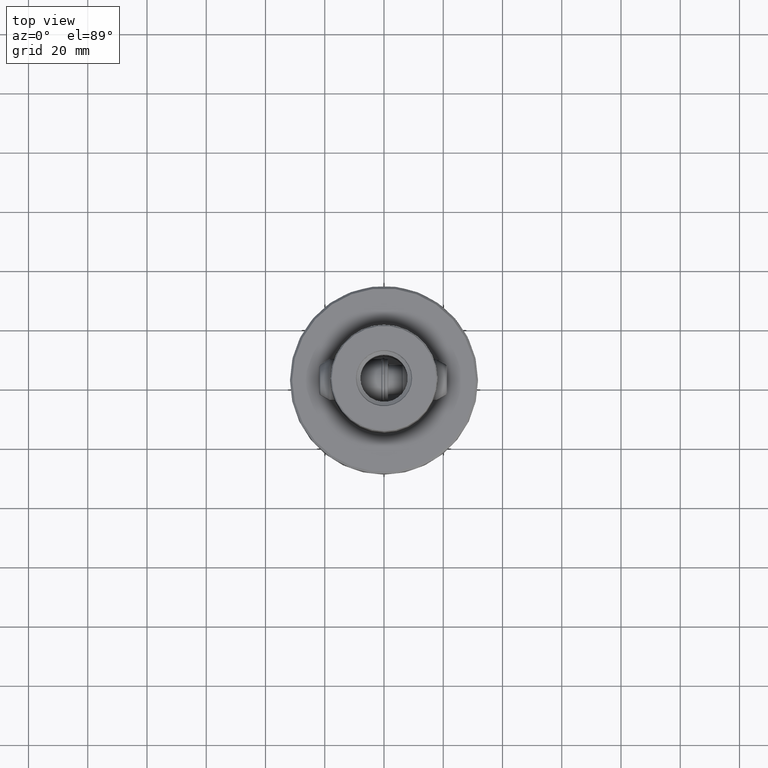
[diagram: clean part render]
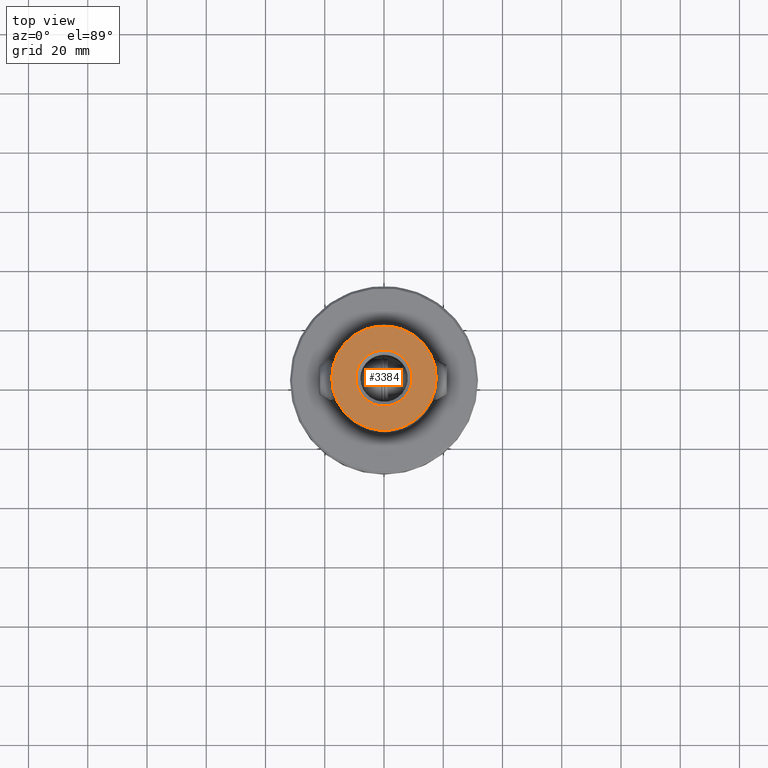
[diagram: same view with one face highlighted and labeled with its STEP entity id]
A machine part, top view. The second image highlights one B-rep face of the part: STEP entity #3384.
In plain terms, the highlighted planar face has unit normal (0, 0, -1).
Its self-contained STEP definition (entity closure, byte-faithful):
#2052=EDGE_CURVE('NONE',#2284,#4082,#5743,.T.);
#2284=VERTEX_POINT('NONE',#5996);
#2490=EDGE_CURVE('NONE',#4294,#5232,#6220,.T.);
#2620=EDGE_CURVE('NONE',#5232,#4294,#6369,.T.);
#3384=ADVANCED_FACE('NONE',(#7227,#7228),#7229,.F.);
#4082=VERTEX_POINT('NONE',#7995);
#4294=VERTEX_POINT('NONE',#8227);
#5232=VERTEX_POINT('NONE',#9264);
#5466=EDGE_CURVE('NONE',#4082,#2284,#9526,.F.);
#5743=CIRCLE('',#10510,17.6425);
#5996=CARTESIAN_POINT('',(17.6425,-4.02546341732638E-014,40.0));
#6220=CIRCLE('',#12842,9.5);
#6369=CIRCLE('',#15240,9.5);
#7227=FACE_OUTER_BOUND('',#27157,.T.);
#7228=FACE_BOUND('',#27158,.T.);
#7229=PLANE('',#27159);
#7995=CARTESIAN_POINT('',(-17.6425,4.24370357715695E-014,40.0));
#8227=CARTESIAN_POINT('',(-9.5,2.37853492327314E-014,40.0));
#9264=CARTESIAN_POINT('',(9.5,-2.26219731966001E-014,40.0));
#9526=CIRCLE('',#45995,17.6425);
#10510=AXIS2_PLACEMENT_3D('',#46326,#46327,#46328);
#12842=AXIS2_PLACEMENT_3D('',#46820,#46821,#46822);
#15240=AXIS2_PLACEMENT_3D('',#47017,#47018,#47019);
#27157=EDGE_LOOP('',(#48119,#48120));
#27158=EDGE_LOOP('',(#48121,#48122));
#27159=AXIS2_PLACEMENT_3D('',#48123,#48124,#48125);
#45995=AXIS2_PLACEMENT_3D('',#50705,#50706,#50707);
#46326=CARTESIAN_POINT('',(0.0,0.0,40.0));
#46327=DIRECTION('',(0.0,0.0,1.0));
#46328=DIRECTION('',(-1.0,2.38126033648423E-015,0.0));
#46820=CARTESIAN_POINT('',(0.0,0.0,40.0));
#46821=DIRECTION('',(-0.0,0.0,1.0));
#46822=DIRECTION('',(1.0,-2.38126033648422E-015,0.0));
#47017=CARTESIAN_POINT('',(0.0,0.0,40.0));
#47018=DIRECTION('',(-0.0,0.0,1.0));
#47019=DIRECTION('',(1.0,-2.38126033648422E-015,0.0));
#48119=ORIENTED_EDGE('',*,*,#5466,.T.);
#48120=ORIENTED_EDGE('',*,*,#2052,.T.);
#48121=ORIENTED_EDGE('',*,*,#2620,.F.);
#48122=ORIENTED_EDGE('',*,*,#2490,.F.);
#48123=CARTESIAN_POINT('',(0.0,0.0,40.0));
#48124=DIRECTION('',(0.0,0.0,-1.0));
#48125=DIRECTION('',(-1.0,0.0,0.0));
#50705=CARTESIAN_POINT('',(0.0,0.0,40.0));
#50706=DIRECTION('',(0.0,0.0,-1.0));
#50707=DIRECTION('',(-1.0,2.38126033648423E-015,0.0));